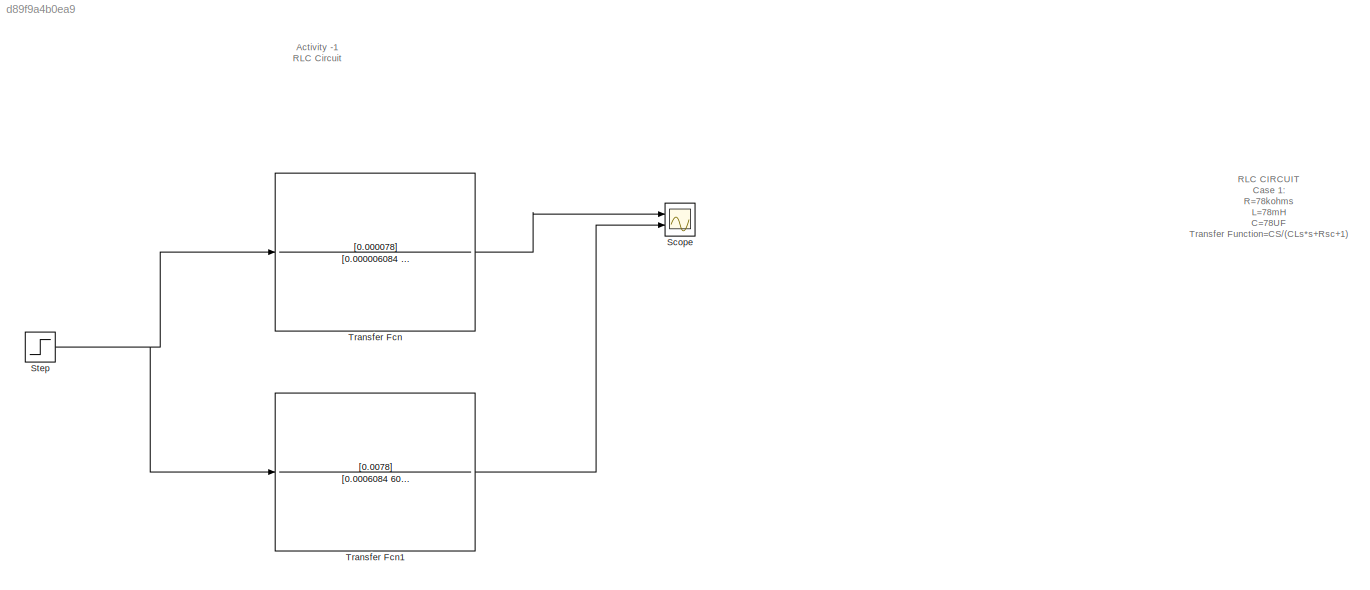
MODEL slx_d89f9a4b0ea9
KIND model
CONFIG AbsTol = auto
CONFIG EnableMultiTasking = off
CONFIG FixedStep = auto
CONFIG MaxStep = auto
CONFIG MinStep = auto
CONFIG RelTol = 1e-3
CONFIG SampleTimeConstraint = Unconstrained
CONFIG SolverName = VariableStepAuto
CONFIG StartTime = 0.0
CONFIG StopTime = 10.0
BLOCK [Scope] Scope
  Floating = off
  NumInputPorts = 2
  Ports = [2]
  ScopeSpecificationString = Simulink.scopes.TimeScopeBlockCfg('CurrentConfiguration', extmgr.ConfigurationSet(extmgr.Configuration('Core','General UI',true),extmgr.Configuration('Core','Source UI',true),extmgr.Configuration('Sources','WiredSimulink',true),extmgr.Configuration('Visuals','Time Domain',true,'SerializedDisplays',{struct('MinYLimReal','-0.000007','MaxYLimReal','0.000067','YLabelReal','','MinYLimMag','0.000000','M...<+1383ch>
BLOCK [Step] Step
  SampleTime = 0
BLOCK [TransferFcn] Transfer Fcn
  Denominator = [0.000006084 6.084  1]
  Numerator = [0.000078]
BLOCK [TransferFcn] Transfer Fcn1
  Denominator = [0.0006084 6084 1]
  Numerator = [0.0078]
ANNOTATION (root): Activity -1 RLC Circuit
ANNOTATION (root): RLC CIRCUIT Case 1: R=78kohms L=78mH C=78UF Transfer Function=CS/(CLs*s+Rsc+1) Case 2: R=7800kohms L=7800mH C=7800UF Transfer Function=CS/(CLs*s+Rsc+1)
NET Step:1 -> Transfer Fcn1:1, Transfer Fcn:1
LINE Transfer Fcn1:1 -> Scope:2
LINE Transfer Fcn:1 -> Scope:1
note: NET lines group one-source signal fan-out (src -> all destinations, sorted); 1:1 wires keep LINE
